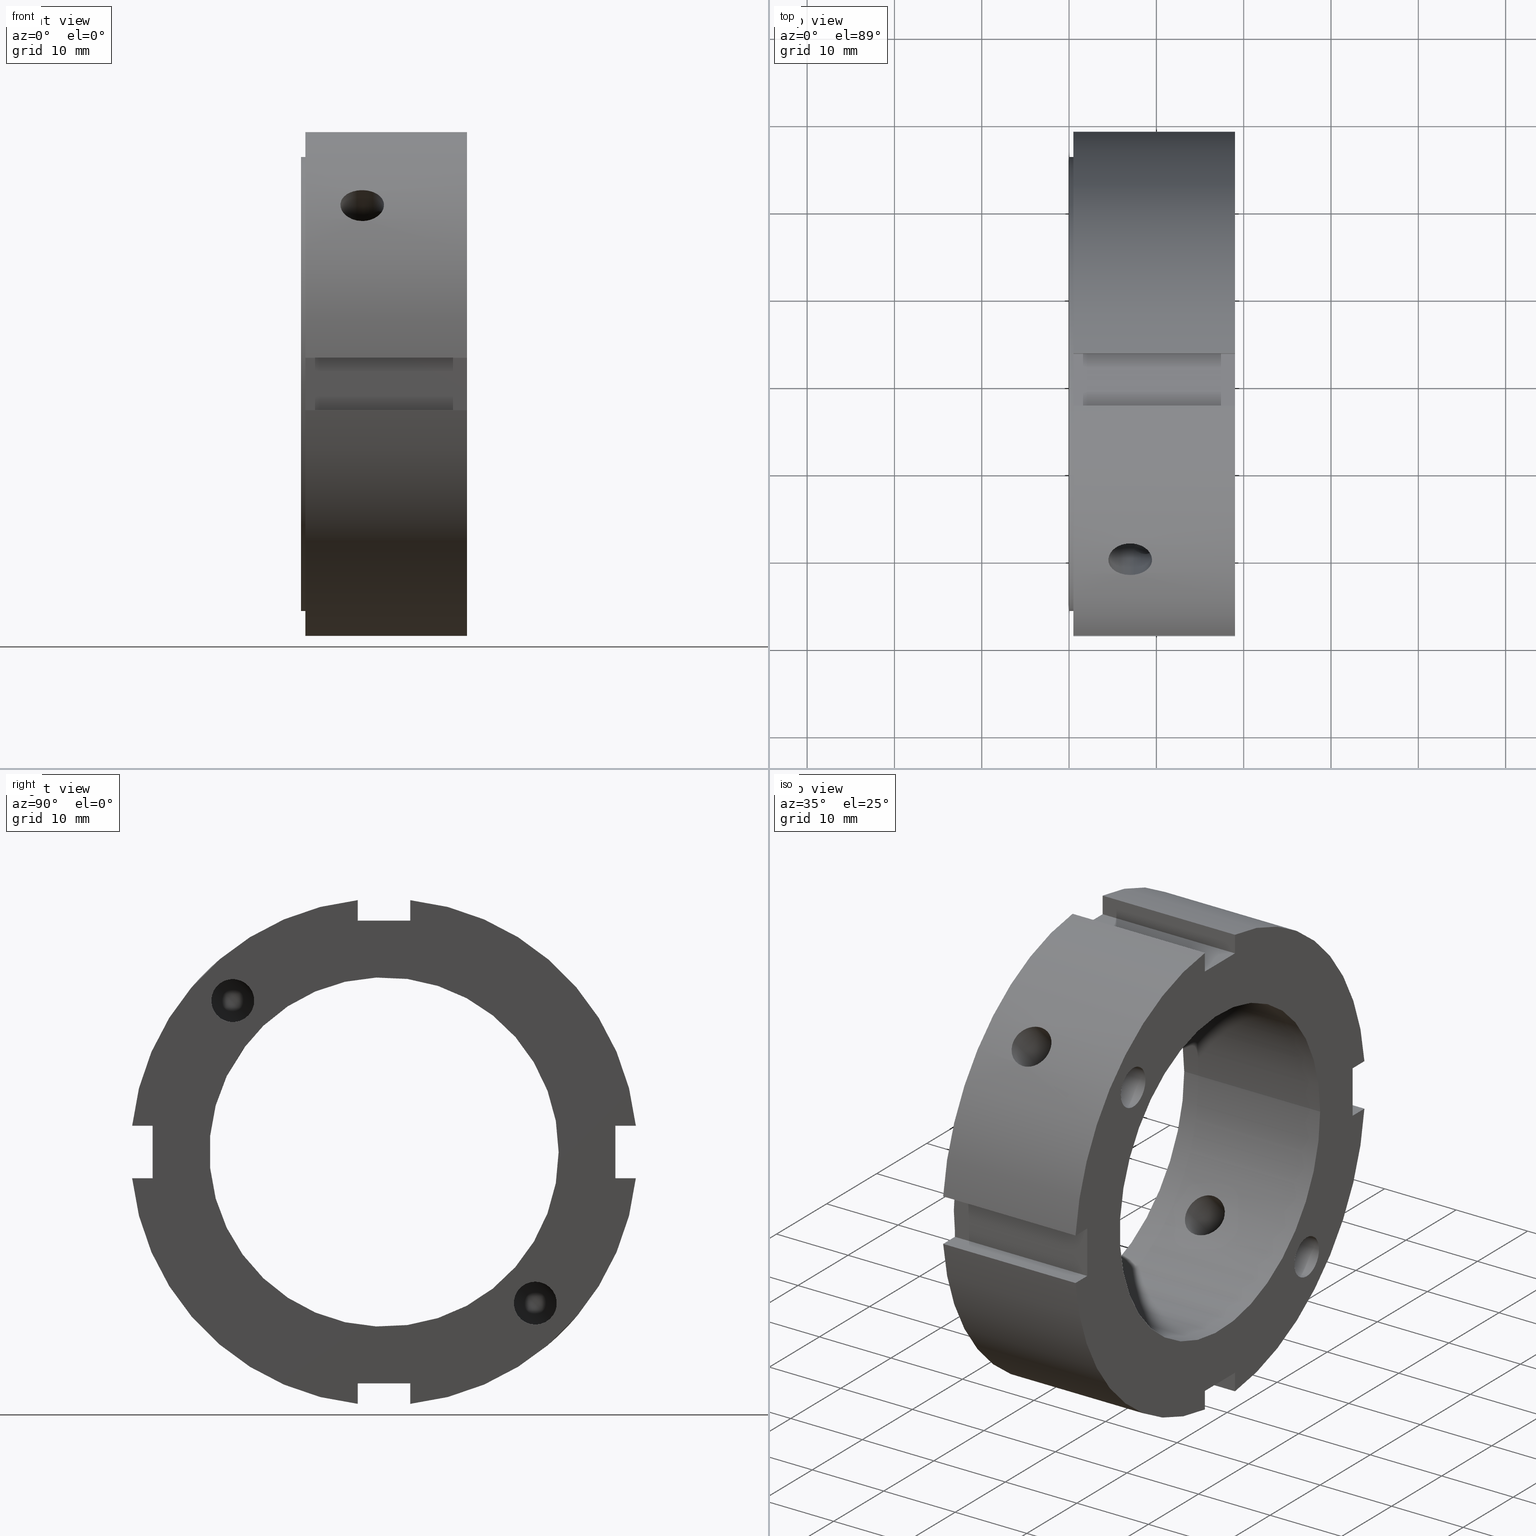
[diagram: canonical four-view strip — front | top / right | iso, engineering-drawing reading convention]
A machine part, canonical four-view strip (front | top / right | iso — engineering-drawing reading convention). The complete STEP part file that produces these views, byte-faithful:
ISO-10303-21;
HEADER;
/****************************************************************
 * Generated by software with PDElib inside                    *
 * PDElib Version v51a, created Wed 11/30/2011                  *
 * ITI Transcendata (http://www.transcendata.com/)              *
 ****************************************************************/
FILE_DESCRIPTION((''),'2;1');
FILE_NAME('C:\\Users\\sugidesign\\Documents\\Fukuda\\3Ddata\\ZMVtype\\FKD ZMV40.stp','2014-02-22T15:47:23',('sugidesign'),(''),'Autodesk Inventor LT ','Autodesk Inventor LT ','');
FILE_SCHEMA(('CONFIG_CONTROL_DESIGN'));
ENDSEC;
DATA;
#5=APPLICATION_CONTEXT('configuration controlled 3D designs of mechanical parts and assemblies');
#6=APPLICATION_PROTOCOL_DEFINITION('International Standard','ap203_configuration_controlled_3d_design_of_mechanical_parts_and_assemblies_mim_lf',2004,#5);
#7=PRODUCT_CONTEXT('',#5,'mechanical');
#8=PRODUCT('FKD ZMV40','FKD ZMV40',$,(#7));
#9=PRODUCT_RELATED_PRODUCT_CATEGORY('part',$,(#8));
#10=PRODUCT_DEFINITION_FORMATION('',$,#8);
#11=PRODUCT_DEFINITION_CONTEXT('part definition',#5,'design');
#12=PRODUCT_DEFINITION('',$,#10,#11);
#18=(NAMED_UNIT(*)PLANE_ANGLE_UNIT()SI_UNIT($,.RADIAN.));
#19=DIMENSIONAL_EXPONENTS(0.0,0.0,0.0,0.0,0.0,0.0,0.0);
#20=PLANE_ANGLE_MEASURE_WITH_UNIT(PLANE_ANGLE_MEASURE(0.0174532925),#18);
#24=(CONVERSION_BASED_UNIT('DEGREE',#20)NAMED_UNIT(#19)PLANE_ANGLE_UNIT());
#28=(NAMED_UNIT(*)SI_UNIT($,.STERADIAN.)SOLID_ANGLE_UNIT());
#32=(LENGTH_UNIT()NAMED_UNIT(*)SI_UNIT(.MILLI.,.METRE.));
#34=UNCERTAINTY_MEASURE_WITH_UNIT(LENGTH_MEASURE(0.01),#32,'DISTANCE_ACCURACY_VALUE','');
#36=(GEOMETRIC_REPRESENTATION_CONTEXT(3)GLOBAL_UNCERTAINTY_ASSIGNED_CONTEXT((#34))GLOBAL_UNIT_ASSIGNED_CONTEXT((#24,#28,#32))REPRESENTATION_CONTEXT('None','None'));
#37=AXIS2_PLACEMENT_3D('',#38,#39,#40);
#38=CARTESIAN_POINT('',(0.0,0.0,0.0));
#39=DIRECTION('',(0.0,0.0,1.0));
#40=DIRECTION('',(1.0,0.0,0.0));
#41=SHAPE_REPRESENTATION('',(#37),#36);
#42=PRODUCT_DEFINITION_SHAPE('','',#12);
#43=SHAPE_DEFINITION_REPRESENTATION(#42,#41);
#49=(NAMED_UNIT(*)PLANE_ANGLE_UNIT()SI_UNIT($,.RADIAN.));
#50=DIMENSIONAL_EXPONENTS(0.0,0.0,0.0,0.0,0.0,0.0,0.0);
#51=PLANE_ANGLE_MEASURE_WITH_UNIT(PLANE_ANGLE_MEASURE(0.0174532925),#49);
#55=(CONVERSION_BASED_UNIT('DEGREE',#51)NAMED_UNIT(#50)PLANE_ANGLE_UNIT());
#59=(NAMED_UNIT(*)SI_UNIT($,.STERADIAN.)SOLID_ANGLE_UNIT());
#63=(LENGTH_UNIT()NAMED_UNIT(*)SI_UNIT(.MILLI.,.METRE.));
#65=UNCERTAINTY_MEASURE_WITH_UNIT(LENGTH_MEASURE(0.000001),#63,'DISTANCE_ACCURACY_VALUE','');
#67=(GEOMETRIC_REPRESENTATION_CONTEXT(3)GLOBAL_UNCERTAINTY_ASSIGNED_CONTEXT((#65))GLOBAL_UNIT_ASSIGNED_CONTEXT((#55,#59,#63))REPRESENTATION_CONTEXT('','3D'));
#68=CARTESIAN_POINT('',(12.999999999999993,-17.324116139070405,17.324116139070426));
#69=DIRECTION('',(-1.0,0.0,0.0));
#70=DIRECTION('',(0.0,-1.0,0.0));
#71=AXIS2_PLACEMENT_3D('',#68,#69,#70);
#72=CYLINDRICAL_SURFACE('',#71,2.4585);
#73=CARTESIAN_POINT('',(18.999999999999993,-19.782616139070406,17.324116139070426));
#74=VERTEX_POINT('',#73);
#75=CARTESIAN_POINT('',(18.999999999999993,-17.324116139070405,17.324116139070426));
#76=DIRECTION('',(-1.0,0.0,0.0));
#77=DIRECTION('',(0.0,-1.0,0.0));
#78=AXIS2_PLACEMENT_3D('',#75,#76,#77);
#79=CIRCLE('',#78,2.4585);
#80=EDGE_CURVE('',#74,#74,#79,.T.);
#81=ORIENTED_EDGE('',*,*,#80,.F.);
#82=EDGE_LOOP('',(#81));
#83=FACE_OUTER_BOUND('',#82,.T.);
#84=CARTESIAN_POINT('',(7.453627325014675,-15.585694117523282,19.062538160617549));
#85=VERTEX_POINT('',#84);
#86=CARTESIAN_POINT('',(7.453627325014644,-15.585694117523282,19.062538160617553));
#87=CARTESIAN_POINT('',(7.453627325014644,-15.65919449545868,19.136038538552953));
#88=CARTESIAN_POINT('',(7.485845144440728,-15.721749740099904,19.190344293212068));
#89=CARTESIAN_POINT('',(7.564508256890284,-15.844093256853062,19.288784135892108));
#90=CARTESIAN_POINT('',(7.612937817032459,-15.903401967603303,19.331915473377844));
#91=CARTESIAN_POINT('',(7.772228880000018,-16.088421748873991,19.454660206995843));
#92=CARTESIAN_POINT('',(7.89550554551691,-16.218432532021481,19.525458372554812));
#93=CARTESIAN_POINT('',(8.283828024816529,-16.648065161405093,19.708243621454251));
#94=CARTESIAN_POINT('',(8.561851096446016,-16.980966899741215,19.78261613907042));
#95=CARTESIAN_POINT('',(8.987347846502068,-17.602859397720042,19.78261613907042));
#96=CARTESIAN_POINT('',(9.170926118717716,-17.918777307895773,19.732057110939461));
#97=CARTESIAN_POINT('',(9.363473477026187,-18.376624449725831,19.551972429047261));
#98=CARTESIAN_POINT('',(9.414345366287382,-18.526834514403433,19.475000967213369));
#99=CARTESIAN_POINT('',(9.482622830029024,-18.810092283857092,19.290003198885113));
#100=CARTESIAN_POINT('',(9.499999999999991,-18.943128105110823,19.181948216124269));
#101=CARTESIAN_POINT('',(9.499999999999991,-19.181948216124258,18.943128105110834));
#102=CARTESIAN_POINT('',(9.482622830029026,-19.290003198885103,18.810092283857102));
#103=CARTESIAN_POINT('',(9.414345366287385,-19.475000967213351,18.526834514403443));
#104=CARTESIAN_POINT('',(9.36347347702619,-19.551972429047247,18.376624449725846));
#105=CARTESIAN_POINT('',(9.170926118717723,-19.732057110939444,17.918777307895791));
#106=CARTESIAN_POINT('',(8.987347846502082,-19.782616139070392,17.60285939772006));
#107=CARTESIAN_POINT('',(8.561851096446045,-19.782616139070392,16.980966899741237));
#108=CARTESIAN_POINT('',(8.283828024816557,-19.708243621454237,16.648065161405128));
#109=CARTESIAN_POINT('',(7.895505545516956,-19.525458372554802,16.21843253202152));
#110=CARTESIAN_POINT('',(7.772228880000084,-19.454660206995836,16.088421748874026));
#111=CARTESIAN_POINT('',(7.612937817032536,-19.331915473377833,15.90340196760333));
#112=CARTESIAN_POINT('',(7.564508256890386,-19.28878413589209,15.844093256853075));
#113=CARTESIAN_POINT('',(7.485845144440839,-19.190344293212043,15.721749740099913));
#114=CARTESIAN_POINT('',(7.453627325014773,-19.136038538552921,15.659194495458696));
#115=CARTESIAN_POINT('',(7.45362732501478,-18.989037782682129,15.512193739587904));
#116=CARTESIAN_POINT('',(7.485845144440816,-18.926482538040904,15.457887984928774));
#117=CARTESIAN_POINT('',(7.56450825689037,-18.804139021287746,15.359448142248732));
#118=CARTESIAN_POINT('',(7.612937817032542,-18.744830310537498,15.316316804762995));
#119=CARTESIAN_POINT('',(7.772228880000092,-18.559810529266802,15.193572071144994));
#120=CARTESIAN_POINT('',(7.895505545516972,-18.429799746119294,15.122773905586024));
#121=CARTESIAN_POINT('',(8.283828024816573,-18.000167116735692,14.939988656686594));
#122=CARTESIAN_POINT('',(8.561851096446043,-17.667265378399581,14.865616139070411));
#123=CARTESIAN_POINT('',(8.987347846502077,-17.045372880420764,14.865616139070411));
#124=CARTESIAN_POINT('',(9.170926118717727,-16.72945497024504,14.916175167201386));
#125=CARTESIAN_POINT('',(9.363473477026194,-16.271607828414982,15.096259849093585));
#126=CARTESIAN_POINT('',(9.414345366287385,-16.121397763737384,15.173231310927484));
#127=CARTESIAN_POINT('',(9.482622830029024,-15.838139994283724,15.358229079255734));
#128=CARTESIAN_POINT('',(9.499999999999991,-15.705104173029998,15.466284062016582));
#129=CARTESIAN_POINT('',(9.499999999999991,-15.466284062016564,15.705104173030017));
#130=CARTESIAN_POINT('',(9.482622830029023,-15.358229079255711,15.838139994283747));
#131=CARTESIAN_POINT('',(9.414345366287376,-15.173231310927459,16.121397763737409));
#132=CARTESIAN_POINT('',(9.363473477026183,-15.096259849093567,16.271607828415007));
#133=CARTESIAN_POINT('',(9.170926118717709,-14.916175167201368,16.729454970245065));
#134=CARTESIAN_POINT('',(8.987347846502063,-14.865616139070411,17.045372880420796));
#135=CARTESIAN_POINT('',(8.561851096446011,-14.865616139070415,17.66726537839962));
#136=CARTESIAN_POINT('',(8.283828024816526,-14.939988656686587,18.000167116735746));
#137=CARTESIAN_POINT('',(7.895505545516905,-15.122773905586024,18.429799746119354));
#138=CARTESIAN_POINT('',(7.772228880000012,-15.193572071144992,18.559810529266844));
#139=CARTESIAN_POINT('',(7.612937817032455,-15.316316804762987,18.74483031053753));
#140=CARTESIAN_POINT('',(7.564508256890302,-15.359448142248729,18.804139021287778));
#141=CARTESIAN_POINT('',(7.485845144440745,-15.457887984928769,18.926482538040933));
#142=CARTESIAN_POINT('',(7.453627325014635,-15.512193739587881,18.989037782682153));
#143=CARTESIAN_POINT('',(7.453627325014635,-15.585694117523278,19.062538160617553));
#144=B_SPLINE_CURVE_WITH_KNOTS('',3,(#86,#87,#88,#89,#90,#91,#92,#93,#94,#95,#96,#97,#98,#99,#100,#101,#102,#103,#104,#105,#106,#107,#108,#109,#110,#111,#112,#113,#114,#115,#116,#117,#118,#119,#120,#121,#122,#123,#124,#125,#126,#127,#128,#129,#130,#131,#132,#133,#134,#135,#136,#137,#138,#139,#140,#141,#142,#143),.UNSPECIFIED.,.T.,.U.,(4,2,2,2,2,2,2,2,2,2,2,2,2,2,2,2,2,2,2,2,2,2,2,2,2,2,2,2,4),(0.0,0.031183569394737,0.062367138789473,0.124734277578947,0.249468555157893,0.350791347146689,0.401452743141086,0.452114139135484,0.502775535129881,0.553436931124278,0.654759723113072,0.779494000692016,0.841861139481488,0.873044708876224,0.90422827827096,0.935411847665695,0.96659541706043,1.028962555849901,1.153696833428842,1.255019625417636,1.305681021412033,1.356342417406431,1.407003813400828,1.457665209395226,1.558988001384021,1.683722278962967,1.74608941775244,1.777272987147177,1.808456556541913),.UNSPECIFIED.);
#145=EDGE_CURVE('',#85,#85,#144,.T.);
#146=ORIENTED_EDGE('',*,*,#145,.F.);
#147=EDGE_LOOP('',(#146));
#148=FACE_BOUND('',#147,.T.);
#149=ADVANCED_FACE('',(#83,#148),#72,.F.);
#150=CARTESIAN_POINT('',(6.999999999999991,-59.232592379533749,59.232592379533756));
#151=DIRECTION('',(0.0,-0.707106781186547,0.707106781186548));
#152=DIRECTION('',(1.0,0.0,0.0));
#153=AXIS2_PLACEMENT_3D('',#150,#151,#152);
#154=CYLINDRICAL_SURFACE('',#153,2.5);
#155=CARTESIAN_POINT('',(6.999999999999991,-22.197524660780719,18.661990754847992));
#156=VERTEX_POINT('',#155);
#157=CARTESIAN_POINT('',(6.999999999999991,-22.197524660780722,18.661990754847988));
#158=CARTESIAN_POINT('',(6.685926821433307,-22.197524660780722,18.661990754847988));
#159=CARTESIAN_POINT('',(6.351026040286827,-22.15711292575266,18.710390970576551));
#160=CARTESIAN_POINT('',(5.735124046939606,-21.991088060538893,18.905248724555669));
#161=CARTESIAN_POINT('',(5.454109536044088,-21.865271681287403,19.051490941357077));
#162=CARTESIAN_POINT('',(5.010356974116497,-21.570654137208784,19.384434288694266));
#163=CARTESIAN_POINT('',(4.817982172770842,-21.382143077268246,19.593338020832572));
#164=CARTESIAN_POINT('',(4.562799379874514,-20.961012666023965,20.043225423786364));
#165=CARTESIAN_POINT('',(4.499999999999991,-20.728179512282058,20.284013796537703));
#166=CARTESIAN_POINT('',(4.499999999999991,-20.2840137965377,20.728179512282061));
#167=CARTESIAN_POINT('',(4.562799379874514,-20.04322542378636,20.961012666023962));
#168=CARTESIAN_POINT('',(4.817982172770844,-19.593338020832569,21.382143077268239));
#169=CARTESIAN_POINT('',(5.010356974116497,-19.384434288694262,21.570654137208788));
#170=CARTESIAN_POINT('',(5.454109536044088,-19.051490941357073,21.865271681287403));
#171=CARTESIAN_POINT('',(5.735124046939606,-18.905248724555666,21.991088060538893));
#172=CARTESIAN_POINT('',(6.351026040286826,-18.710390970576547,22.15711292575266));
#173=CARTESIAN_POINT('',(6.685926821433307,-18.661990754847988,22.197524660780722));
#174=CARTESIAN_POINT('',(7.314073178566673,-18.661990754847988,22.197524660780719));
#175=CARTESIAN_POINT('',(7.648973959713153,-18.710390970576544,22.157112925752671));
#176=CARTESIAN_POINT('',(8.264875953060374,-18.905248724555662,21.9910880605389));
#177=CARTESIAN_POINT('',(8.545890463955892,-19.05149094135707,21.865271681287403));
#178=CARTESIAN_POINT('',(8.989643025883485,-19.384434288694262,21.570654137208788));
#179=CARTESIAN_POINT('',(9.182017827229139,-19.593338020832569,21.382143077268239));
#180=CARTESIAN_POINT('',(9.437200620125466,-20.043225423786364,20.961012666023962));
#181=CARTESIAN_POINT('',(9.499999999999991,-20.2840137965377,20.728179512282061));
#182=CARTESIAN_POINT('',(9.499999999999991,-20.728179512282058,20.284013796537703));
#183=CARTESIAN_POINT('',(9.43720062012547,-20.961012666023958,20.043225423786364));
#184=CARTESIAN_POINT('',(9.182017827229142,-21.382143077268235,19.593338020832572));
#185=CARTESIAN_POINT('',(8.989643025883487,-21.570654137208784,19.384434288694266));
#186=CARTESIAN_POINT('',(8.545890463955894,-21.865271681287403,19.051490941357077));
#187=CARTESIAN_POINT('',(8.264875953060377,-21.991088060538893,18.905248724555669));
#188=CARTESIAN_POINT('',(7.648973959713156,-22.15711292575266,18.710390970576551));
#189=CARTESIAN_POINT('',(7.314073178566673,-22.197524660780722,18.661990754847988));
#190=CARTESIAN_POINT('',(6.999999999999991,-22.197524660780722,18.661990754847988));
#191=B_SPLINE_CURVE_WITH_KNOTS('',3,(#157,#158,#159,#160,#161,#162,#163,#164,#165,#166,#167,#168,#169,#170,#171,#172,#173,#174,#175,#176,#177,#178,#179,#180,#181,#182,#183,#184,#185,#186,#187,#188,#189,#190),.UNSPECIFIED.,.T.,.U.,(4,2,2,2,2,2,2,2,2,2,2,2,2,2,2,2,4),(0.0,0.094221953570005,0.18844390714001,0.282665684012033,0.376887460884057,0.47110923775608,0.565331014628104,0.659552968198109,0.753774921768113,0.847996875338118,0.942218828908123,1.036440605780147,1.13066238265217,1.224884159524194,1.319105936396217,1.413327889966222,1.507549843536227),.UNSPECIFIED.);
#192=EDGE_CURVE('',#156,#156,#191,.T.);
#193=ORIENTED_EDGE('',*,*,#192,.F.);
#194=EDGE_LOOP('',(#193));
#195=FACE_OUTER_BOUND('',#194,.T.);
#196=ORIENTED_EDGE('',*,*,#145,.T.);
#197=EDGE_LOOP('',(#196));
#198=FACE_BOUND('',#197,.T.);
#199=CARTESIAN_POINT('',(6.999999999999991,-15.798982153368646,12.263448247435914));
#200=VERTEX_POINT('',#199);
#201=CARTESIAN_POINT('',(6.999999999999991,-15.798982153368648,12.26344824743591));
#202=CARTESIAN_POINT('',(7.314260048212735,-15.798982153368648,12.26344824743591));
#203=CARTESIAN_POINT('',(7.649240061450704,-15.760348281083491,12.313729270633617));
#204=CARTESIAN_POINT('',(8.265089704693066,-15.600850565277671,12.515189491950379));
#205=CARTESIAN_POINT('',(8.545987686324247,-15.479690541518636,12.666047294780203));
#206=CARTESIAN_POINT('',(8.989544366845442,-15.193879826291587,13.007520452827418));
#207=CARTESIAN_POINT('',(9.181891468164904,-15.010052497889516,13.220943998802557));
#208=CARTESIAN_POINT('',(9.437128337929737,-14.595444003476585,13.677282279292415));
#209=CARTESIAN_POINT('',(9.499999999999991,-14.364349178471571,13.91992206899033));
#210=CARTESIAN_POINT('',(9.499999999999991,-13.919922068990328,14.364349178471571));
#211=CARTESIAN_POINT('',(9.437128337929737,-13.677282279292415,14.595444003476587));
#212=CARTESIAN_POINT('',(9.181891468164903,-13.220943998802554,15.010052497889522));
#213=CARTESIAN_POINT('',(8.98954436684544,-13.007520452827414,15.193879826291589));
#214=CARTESIAN_POINT('',(8.545987686324247,-12.666047294780199,15.479690541518636));
#215=CARTESIAN_POINT('',(8.265089704693065,-12.515189491950379,15.600850565277671));
#216=CARTESIAN_POINT('',(7.649240061450703,-12.313729270633617,15.760348281083491));
#217=CARTESIAN_POINT('',(7.314260048212735,-12.263448247435916,15.798982153368648));
#218=CARTESIAN_POINT('',(6.685739951787246,-12.263448247435916,15.798982153368648));
#219=CARTESIAN_POINT('',(6.350759938549278,-12.313729270633617,15.760348281083491));
#220=CARTESIAN_POINT('',(5.734910295306916,-12.515189491950379,15.600850565277671));
#221=CARTESIAN_POINT('',(5.454012313675733,-12.666047294780199,15.479690541518636));
#222=CARTESIAN_POINT('',(5.010455633154542,-13.007520452827418,15.193879826291589));
#223=CARTESIAN_POINT('',(4.818108531835079,-13.220943998802557,15.010052497889518));
#224=CARTESIAN_POINT('',(4.562871662070246,-13.677282279292415,14.595444003476587));
#225=CARTESIAN_POINT('',(4.499999999999991,-13.919922068990328,14.364349178471571));
#226=CARTESIAN_POINT('',(4.499999999999991,-14.364349178471571,13.91992206899033));
#227=CARTESIAN_POINT('',(4.562871662070244,-14.595444003476585,13.67728227929242));
#228=CARTESIAN_POINT('',(4.818108531835078,-15.010052497889518,13.220943998802559));
#229=CARTESIAN_POINT('',(5.010455633154541,-15.193879826291589,13.007520452827418));
#230=CARTESIAN_POINT('',(5.454012313675735,-15.479690541518636,12.666047294780203));
#231=CARTESIAN_POINT('',(5.734910295306919,-15.600850565277671,12.515189491950379));
#232=CARTESIAN_POINT('',(6.350759938549281,-15.760348281083491,12.313729270633617));
#233=CARTESIAN_POINT('',(6.685739951787246,-15.798982153368648,12.263448247435914));
#234=CARTESIAN_POINT('',(6.999999999999991,-15.798982153368648,12.263448247435914));
#235=B_SPLINE_CURVE_WITH_KNOTS('',3,(#201,#202,#203,#204,#205,#206,#207,#208,#209,#210,#211,#212,#213,#214,#215,#216,#217,#218,#219,#220,#221,#222,#223,#224,#225,#226,#227,#228,#229,#230,#231,#232,#233,#234),.UNSPECIFIED.,.T.,.U.,(4,2,2,2,2,2,2,2,2,2,2,2,2,2,2,2,4),(0.0,0.094278014463823,0.188556028927647,0.282833255784844,0.377110482642041,0.471387709499238,0.565664936356435,0.659942950820258,0.754220965284081,0.848498979747905,0.942776994211728,1.037054221068925,1.131331447926122,1.225608674783319,1.319885901640516,1.41416391610434,1.508441930568163),.UNSPECIFIED.);
#236=EDGE_CURVE('',#200,#200,#235,.T.);
#237=ORIENTED_EDGE('',*,*,#236,.F.);
#238=EDGE_LOOP('',(#237));
#239=FACE_BOUND('',#238,.T.);
#240=ADVANCED_FACE('',(#195,#198,#239),#154,.F.);
#241=CARTESIAN_POINT('',(12.999999999999993,17.324116139070419,-17.324116139070412));
#242=DIRECTION('',(1.0,0.0,0.0));
#243=DIRECTION('',(0.0,0.0,-1.0));
#244=AXIS2_PLACEMENT_3D('',#241,#242,#243);
#245=CYLINDRICAL_SURFACE('',#244,2.4585);
#246=CARTESIAN_POINT('',(7.453627325014675,19.062538160617546,-15.585694117523285));
#247=VERTEX_POINT('',#246);
#248=CARTESIAN_POINT('',(7.453627325014675,19.062538160617546,-15.585694117523285));
#249=CARTESIAN_POINT('',(7.453627325014675,18.989037782682146,-15.512193739587888));
#250=CARTESIAN_POINT('',(7.485845144440745,18.926482538040929,-15.457887984928773));
#251=CARTESIAN_POINT('',(7.564508256890302,18.804139021287774,-15.359448142248732));
#252=CARTESIAN_POINT('',(7.612937817032455,18.744830310537527,-15.316316804762993));
#253=CARTESIAN_POINT('',(7.772228880000012,18.559810529266841,-15.193572071144995));
#254=CARTESIAN_POINT('',(7.895505545516905,18.42979974611935,-15.12277390558603));
#255=CARTESIAN_POINT('',(8.283828024816526,18.000167116735742,-14.939988656686591));
#256=CARTESIAN_POINT('',(8.561851096446011,17.667265378399616,-14.865616139070418));
#257=CARTESIAN_POINT('',(8.987347846502063,17.045372880420793,-14.865616139070417));
#258=CARTESIAN_POINT('',(9.170926118717709,16.729454970245062,-14.916175167201374));
#259=CARTESIAN_POINT('',(9.363473477026183,16.271607828415004,-15.096259849093572));
#260=CARTESIAN_POINT('',(9.414345366287376,16.121397763737406,-15.173231310927465));
#261=CARTESIAN_POINT('',(9.482622830029023,15.838139994283742,-15.358229079255716));
#262=CARTESIAN_POINT('',(9.499999999999991,15.705104173030014,-15.466284062016566));
#263=CARTESIAN_POINT('',(9.499999999999991,15.466284062016577,-15.705104173030001));
#264=CARTESIAN_POINT('',(9.482622830029024,15.358229079255729,-15.838139994283729));
#265=CARTESIAN_POINT('',(9.414345366287385,15.173231310927481,-16.121397763737388));
#266=CARTESIAN_POINT('',(9.363473477026194,15.096259849093583,-16.271607828414986));
#267=CARTESIAN_POINT('',(9.170926118717729,14.916175167201384,-16.72945497024504));
#268=CARTESIAN_POINT('',(8.987347846502077,14.865616139070417,-17.045372880420764));
#269=CARTESIAN_POINT('',(8.561851096446043,14.865616139070417,-17.667265378399581));
#270=CARTESIAN_POINT('',(8.28382802481657,14.939988656686584,-18.000167116735692));
#271=CARTESIAN_POINT('',(7.89550554551697,15.122773905586017,-18.429799746119304));
#272=CARTESIAN_POINT('',(7.772228880000089,15.19357207114499,-18.559810529266805));
#273=CARTESIAN_POINT('',(7.612937817032539,15.316316804762991,-18.744830310537502));
#274=CARTESIAN_POINT('',(7.56450825689037,15.359448142248729,-18.80413902128775));
#275=CARTESIAN_POINT('',(7.485845144440817,15.457887984928769,-18.926482538040908));
#276=CARTESIAN_POINT('',(7.45362732501478,15.512193739587898,-18.989037782682132));
#277=CARTESIAN_POINT('',(7.453627325014773,15.65919449545869,-19.136038538552924));
#278=CARTESIAN_POINT('',(7.485845144440839,15.721749740099909,-19.190344293212046));
#279=CARTESIAN_POINT('',(7.564508256890386,15.844093256853071,-19.288784135892094));
#280=CARTESIAN_POINT('',(7.612937817032536,15.903401967603326,-19.33191547337784));
#281=CARTESIAN_POINT('',(7.772228880000083,16.088421748874019,-19.45466020699584));
#282=CARTESIAN_POINT('',(7.895505545516956,16.218432532021513,-19.525458372554809));
#283=CARTESIAN_POINT('',(8.283828024816557,16.648065161405125,-19.708243621454244));
#284=CARTESIAN_POINT('',(8.561851096446045,16.980966899741233,-19.782616139070399));
#285=CARTESIAN_POINT('',(8.987347846502082,17.602859397720056,-19.782616139070399));
#286=CARTESIAN_POINT('',(9.170926118717723,17.918777307895791,-19.732057110939447));
#287=CARTESIAN_POINT('',(9.36347347702619,18.376624449725846,-19.551972429047247));
#288=CARTESIAN_POINT('',(9.414345366287385,18.526834514403443,-19.475000967213351));
#289=CARTESIAN_POINT('',(9.482622830029024,18.810092283857102,-19.290003198885103));
#290=CARTESIAN_POINT('',(9.499999999999991,18.94312810511083,-19.181948216124262));
#291=CARTESIAN_POINT('',(9.499999999999991,19.181948216124265,-18.94312810511083));
#292=CARTESIAN_POINT('',(9.482622830029024,19.29000319888511,-18.810092283857095));
#293=CARTESIAN_POINT('',(9.414345366287382,19.475000967213361,-18.526834514403436));
#294=CARTESIAN_POINT('',(9.363473477026187,19.551972429047257,-18.376624449725835));
#295=CARTESIAN_POINT('',(9.170926118717716,19.732057110939458,-17.91877730789578));
#296=CARTESIAN_POINT('',(8.987347846502068,19.782616139070413,-17.602859397720046));
#297=CARTESIAN_POINT('',(8.561851096446016,19.782616139070413,-16.980966899741219));
#298=CARTESIAN_POINT('',(8.283828024816529,19.708243621454248,-16.6480651614051));
#299=CARTESIAN_POINT('',(7.895505545516908,19.525458372554809,-16.218432532021488));
#300=CARTESIAN_POINT('',(7.772228880000016,19.45466020699584,-16.088421748873994));
#301=CARTESIAN_POINT('',(7.612937817032458,19.33191547337784,-15.903401967603308));
#302=CARTESIAN_POINT('',(7.564508256890282,19.288784135892104,-15.844093256853068));
#303=CARTESIAN_POINT('',(7.485845144440726,19.190344293212064,-15.721749740099909));
#304=CARTESIAN_POINT('',(7.453627325014675,19.136038538552945,-15.659194495458683));
#305=CARTESIAN_POINT('',(7.453627325014675,19.062538160617546,-15.585694117523285));
#306=B_SPLINE_CURVE_WITH_KNOTS('',3,(#248,#249,#250,#251,#252,#253,#254,#255,#256,#257,#258,#259,#260,#261,#262,#263,#264,#265,#266,#267,#268,#269,#270,#271,#272,#273,#274,#275,#276,#277,#278,#279,#280,#281,#282,#283,#284,#285,#286,#287,#288,#289,#290,#291,#292,#293,#294,#295,#296,#297,#298,#299,#300,#301,#302,#303,#304,#305),.UNSPECIFIED.,.T.,.U.,(4,2,2,2,2,2,2,2,2,2,2,2,2,2,2,2,2,2,2,2,2,2,2,2,2,2,2,2,4),(0.0,0.031183569394737,0.062367138789473,0.124734277578946,0.249468555157892,0.350791347146687,0.401452743141085,0.452114139135483,0.50277553512988,0.553436931124277,0.654759723113071,0.779494000692012,0.841861139481482,0.873044708876218,0.904228278270953,0.935411847665689,0.966595417060425,1.028962555849897,1.153696833428841,1.255019625417635,1.305681021412032,1.356342417406429,1.407003813400826,1.457665209395224,1.558988001384019,1.683722278962966,1.746089417752439,1.777272987147176,1.808456556541913),.UNSPECIFIED.);
#307=EDGE_CURVE('',#247,#247,#306,.T.);
#308=ORIENTED_EDGE('',*,*,#307,.F.);
#309=EDGE_LOOP('',(#308));
#310=FACE_OUTER_BOUND('',#309,.T.);
#311=CARTESIAN_POINT('',(18.999999999999993,17.324116139070419,-19.782616139070409));
#312=VERTEX_POINT('',#311);
#313=CARTESIAN_POINT('',(18.999999999999993,17.324116139070419,-17.324116139070412));
#314=DIRECTION('',(-1.0,0.0,0.0));
#315=DIRECTION('',(0.0,0.0,-1.0));
#316=AXIS2_PLACEMENT_3D('',#313,#314,#315);
#317=CIRCLE('',#316,2.4585);
#318=EDGE_CURVE('',#312,#312,#317,.T.);
#319=ORIENTED_EDGE('',*,*,#318,.F.);
#320=EDGE_LOOP('',(#319));
#321=FACE_BOUND('',#320,.T.);
#322=ADVANCED_FACE('',(#310,#321),#245,.F.);
#323=CARTESIAN_POINT('',(6.999999999999991,59.232592379533749,-59.232592379533756));
#324=DIRECTION('',(0.0,-0.707106781186547,0.707106781186548));
#325=DIRECTION('',(1.0,0.0,0.0));
#326=AXIS2_PLACEMENT_3D('',#323,#324,#325);
#327=CYLINDRICAL_SURFACE('',#326,2.5);
#328=CARTESIAN_POINT('',(6.999999999999991,18.661990754847984,-22.197524660780722));
#329=VERTEX_POINT('',#328);
#330=CARTESIAN_POINT('',(6.999999999999992,18.661990754847984,-22.197524660780729));
#331=CARTESIAN_POINT('',(7.314073178566675,18.661990754847984,-22.197524660780729));
#332=CARTESIAN_POINT('',(7.648973959713155,18.710390970576544,-22.157112925752671));
#333=CARTESIAN_POINT('',(8.264875953060376,18.905248724555662,-21.9910880605389));
#334=CARTESIAN_POINT('',(8.545890463955892,19.051490941357073,-21.865271681287403));
#335=CARTESIAN_POINT('',(8.989643025883485,19.384434288694262,-21.570654137208788));
#336=CARTESIAN_POINT('',(9.182017827229137,19.593338020832569,-21.38214307726825));
#337=CARTESIAN_POINT('',(9.437200620125466,20.04322542378636,-20.961012666023969));
#338=CARTESIAN_POINT('',(9.499999999999991,20.2840137965377,-20.728179512282061));
#339=CARTESIAN_POINT('',(9.499999999999991,20.728179512282058,-20.284013796537703));
#340=CARTESIAN_POINT('',(9.43720062012547,20.961012666023962,-20.043225423786364));
#341=CARTESIAN_POINT('',(9.18201782722914,21.382143077268239,-19.593338020832572));
#342=CARTESIAN_POINT('',(8.989643025883485,21.570654137208784,-19.384434288694266));
#343=CARTESIAN_POINT('',(8.545890463955892,21.865271681287396,-19.051490941357073));
#344=CARTESIAN_POINT('',(8.264875953060376,21.991088060538893,-18.905248724555669));
#345=CARTESIAN_POINT('',(7.648973959713155,22.15711292575266,-18.710390970576551));
#346=CARTESIAN_POINT('',(7.314073178566673,22.197524660780719,-18.661990754847992));
#347=CARTESIAN_POINT('',(6.685926821433307,22.197524660780719,-18.661990754847992));
#348=CARTESIAN_POINT('',(6.351026040286827,22.15711292575266,-18.710390970576551));
#349=CARTESIAN_POINT('',(5.735124046939606,21.991088060538893,-18.905248724555669));
#350=CARTESIAN_POINT('',(5.454109536044088,21.865271681287403,-19.051490941357077));
#351=CARTESIAN_POINT('',(5.010356974116497,21.570654137208784,-19.384434288694266));
#352=CARTESIAN_POINT('',(4.817982172770842,21.382143077268235,-19.593338020832572));
#353=CARTESIAN_POINT('',(4.562799379874513,20.961012666023958,-20.043225423786364));
#354=CARTESIAN_POINT('',(4.499999999999991,20.728179512282058,-20.284013796537703));
#355=CARTESIAN_POINT('',(4.499999999999991,20.2840137965377,-20.728179512282061));
#356=CARTESIAN_POINT('',(4.562799379874514,20.04322542378636,-20.961012666023962));
#357=CARTESIAN_POINT('',(4.817982172770844,19.593338020832569,-21.382143077268239));
#358=CARTESIAN_POINT('',(5.010356974116497,19.384434288694262,-21.570654137208788));
#359=CARTESIAN_POINT('',(5.454109536044088,19.051490941357073,-21.865271681287403));
#360=CARTESIAN_POINT('',(5.735124046939606,18.905248724555662,-21.9910880605389));
#361=CARTESIAN_POINT('',(6.351026040286827,18.710390970576544,-22.157112925752671));
#362=CARTESIAN_POINT('',(6.685926821433307,18.661990754847984,-22.197524660780729));
#363=CARTESIAN_POINT('',(6.999999999999989,18.661990754847984,-22.197524660780729));
#364=B_SPLINE_CURVE_WITH_KNOTS('',3,(#330,#331,#332,#333,#334,#335,#336,#337,#338,#339,#340,#341,#342,#343,#344,#345,#346,#347,#348,#349,#350,#351,#352,#353,#354,#355,#356,#357,#358,#359,#360,#361,#362,#363),.UNSPECIFIED.,.T.,.U.,(4,2,2,2,2,2,2,2,2,2,2,2,2,2,2,2,4),(0.0,0.094221953570005,0.18844390714001,0.282665684012033,0.376887460884057,0.47110923775608,0.565331014628104,0.659552968198109,0.753774921768114,0.847996875338118,0.942218828908123,1.036440605780147,1.13066238265217,1.224884159524194,1.319105936396217,1.413327889966222,1.507549843536227),.UNSPECIFIED.);
#365=EDGE_CURVE('',#329,#329,#364,.T.);
#366=ORIENTED_EDGE('',*,*,#365,.F.);
#367=EDGE_LOOP('',(#366));
#368=FACE_OUTER_BOUND('',#367,.T.);
#369=ORIENTED_EDGE('',*,*,#307,.T.);
#370=EDGE_LOOP('',(#369));
#371=FACE_BOUND('',#370,.T.);
#372=CARTESIAN_POINT('',(6.999999999999991,12.263448247435909,-15.798982153368648));
#373=VERTEX_POINT('',#372);
#374=CARTESIAN_POINT('',(6.999999999999991,12.263448247435909,-15.79898215336865));
#375=CARTESIAN_POINT('',(6.685739951787246,12.263448247435909,-15.79898215336865));
#376=CARTESIAN_POINT('',(6.350759938549278,12.313729270633617,-15.760348281083491));
#377=CARTESIAN_POINT('',(5.734910295306916,12.515189491950379,-15.600850565277671));
#378=CARTESIAN_POINT('',(5.454012313675733,12.666047294780199,-15.479690541518636));
#379=CARTESIAN_POINT('',(5.010455633154542,13.007520452827418,-15.193879826291589));
#380=CARTESIAN_POINT('',(4.818108531835079,13.220943998802557,-15.010052497889522));
#381=CARTESIAN_POINT('',(4.562871662070243,13.677282279292415,-14.59544400347659));
#382=CARTESIAN_POINT('',(4.499999999999991,13.919922068990328,-14.364349178471574));
#383=CARTESIAN_POINT('',(4.499999999999991,14.364349178471571,-13.91992206899033));
#384=CARTESIAN_POINT('',(4.562871662070243,14.595444003476585,-13.677282279292415));
#385=CARTESIAN_POINT('',(4.818108531835076,15.010052497889516,-13.220943998802557));
#386=CARTESIAN_POINT('',(5.010455633154541,15.193879826291587,-13.007520452827418));
#387=CARTESIAN_POINT('',(5.454012313675733,15.479690541518634,-12.666047294780203));
#388=CARTESIAN_POINT('',(5.734910295306914,15.600850565277671,-12.51518949195038));
#389=CARTESIAN_POINT('',(6.350759938549276,15.760348281083495,-12.313729270633619));
#390=CARTESIAN_POINT('',(6.685739951787246,15.798982153368645,-12.263448247435917));
#391=CARTESIAN_POINT('',(7.314260048212735,15.798982153368646,-12.263448247435917));
#392=CARTESIAN_POINT('',(7.649240061450705,15.760348281083491,-12.313729270633619));
#393=CARTESIAN_POINT('',(8.265089704693066,15.600850565277671,-12.51518949195038));
#394=CARTESIAN_POINT('',(8.545987686324247,15.479690541518636,-12.666047294780203));
#395=CARTESIAN_POINT('',(8.989544366845442,15.193879826291585,-13.007520452827418));
#396=CARTESIAN_POINT('',(9.181891468164903,15.010052497889518,-13.220943998802559));
#397=CARTESIAN_POINT('',(9.437128337929737,14.595444003476587,-13.677282279292417));
#398=CARTESIAN_POINT('',(9.499999999999991,14.364349178471571,-13.919922068990328));
#399=CARTESIAN_POINT('',(9.499999999999991,13.919922068990328,-14.364349178471571));
#400=CARTESIAN_POINT('',(9.437128337929737,13.677282279292415,-14.595444003476585));
#401=CARTESIAN_POINT('',(9.181891468164903,13.220943998802557,-15.010052497889516));
#402=CARTESIAN_POINT('',(8.989544366845442,13.007520452827418,-15.193879826291589));
#403=CARTESIAN_POINT('',(8.545987686324249,12.666047294780201,-15.479690541518636));
#404=CARTESIAN_POINT('',(8.265089704693068,12.51518949195038,-15.600850565277671));
#405=CARTESIAN_POINT('',(7.649240061450707,12.313729270633619,-15.760348281083495));
#406=CARTESIAN_POINT('',(7.314260048212735,12.26344824743591,-15.798982153368648));
#407=CARTESIAN_POINT('',(6.999999999999991,12.26344824743591,-15.798982153368648));
#408=B_SPLINE_CURVE_WITH_KNOTS('',3,(#374,#375,#376,#377,#378,#379,#380,#381,#382,#383,#384,#385,#386,#387,#388,#389,#390,#391,#392,#393,#394,#395,#396,#397,#398,#399,#400,#401,#402,#403,#404,#405,#406,#407),.UNSPECIFIED.,.T.,.U.,(4,2,2,2,2,2,2,2,2,2,2,2,2,2,2,2,4),(0.0,0.094278014463823,0.188556028927647,0.282833255784844,0.377110482642041,0.471387709499238,0.565664936356435,0.659942950820258,0.754220965284081,0.848498979747905,0.942776994211728,1.037054221068925,1.131331447926122,1.225608674783319,1.319885901640516,1.41416391610434,1.508441930568163),.UNSPECIFIED.);
#409=EDGE_CURVE('',#373,#373,#408,.T.);
#410=ORIENTED_EDGE('',*,*,#409,.F.);
#411=EDGE_LOOP('',(#410));
#412=FACE_BOUND('',#411,.T.);
#413=ADVANCED_FACE('',(#368,#371,#412),#327,.F.);
#414=CARTESIAN_POINT('',(18.999999999999993,-3.000000000000004,-26.500000000000004));
#415=DIRECTION('',(0.0,-1.0,0.0));
#416=DIRECTION('',(-1.0,0.0,0.0));
#417=AXIS2_PLACEMENT_3D('',#414,#415,#416);
#418=PLANE('',#417);
#419=CARTESIAN_POINT('',(0.499999999999994,-3.000000000000004,-26.500000000000004));
#420=VERTEX_POINT('',#419);
#421=CARTESIAN_POINT('',(0.499999999999994,-3.000000000000004,-28.844410203711917));
#422=VERTEX_POINT('',#421);
#423=CARTESIAN_POINT('',(0.499999999999994,-3.000000000000003,-26.500000000000004));
#424=DIRECTION('',(0.0,0.0,-1.0));
#425=VECTOR('',#424,2.344410203711913);
#426=LINE('',#423,#425);
#427=EDGE_CURVE('',#420,#422,#426,.T.);
#428=ORIENTED_EDGE('',*,*,#427,.F.);
#429=CARTESIAN_POINT('',(18.999999999999993,-3.000000000000004,-26.500000000000004));
#430=VERTEX_POINT('',#429);
#431=CARTESIAN_POINT('',(18.999999999999993,-3.000000000000004,-26.500000000000004));
#432=DIRECTION('',(-1.0,0.0,0.0));
#433=VECTOR('',#432,18.5);
#434=LINE('',#431,#433);
#435=EDGE_CURVE('',#430,#420,#434,.T.);
#436=ORIENTED_EDGE('',*,*,#435,.F.);
#437=CARTESIAN_POINT('',(18.999999999999993,-3.000000000000004,-28.844410203711917));
#438=VERTEX_POINT('',#437);
#439=CARTESIAN_POINT('',(18.999999999999993,-3.000000000000003,-28.844410203711917));
#440=DIRECTION('',(0.0,0.0,1.0));
#441=VECTOR('',#440,2.344410203711913);
#442=LINE('',#439,#441);
#443=EDGE_CURVE('',#438,#430,#442,.T.);
#444=ORIENTED_EDGE('',*,*,#443,.F.);
#445=CARTESIAN_POINT('',(0.499999999999993,-3.000000000000005,-28.844410203711917));
#446=DIRECTION('',(1.0,0.0,0.0));
#447=VECTOR('',#446,18.5);
#448=LINE('',#445,#447);
#449=EDGE_CURVE('',#422,#438,#448,.T.);
#450=ORIENTED_EDGE('',*,*,#449,.F.);
#451=EDGE_LOOP('',(#428,#436,#444,#450));
#452=FACE_OUTER_BOUND('',#451,.T.);
#453=ADVANCED_FACE('',(#452),#418,.F.);
#454=CARTESIAN_POINT('',(18.999999999999993,2.999999999999994,-29.000000000000004));
#455=DIRECTION('',(0.0,1.0,0.0));
#456=DIRECTION('',(1.0,0.0,0.0));
#457=AXIS2_PLACEMENT_3D('',#454,#455,#456);
#458=PLANE('',#457);
#459=CARTESIAN_POINT('',(0.499999999999994,2.999999999999994,-28.844410203711917));
#460=VERTEX_POINT('',#459);
#461=CARTESIAN_POINT('',(0.499999999999994,2.999999999999994,-26.500000000000004));
#462=VERTEX_POINT('',#461);
#463=CARTESIAN_POINT('',(0.499999999999994,2.999999999999993,-28.844410203711917));
#464=DIRECTION('',(0.0,0.0,1.0));
#465=VECTOR('',#464,2.344410203711913);
#466=LINE('',#463,#465);
#467=EDGE_CURVE('',#460,#462,#466,.T.);
#468=ORIENTED_EDGE('',*,*,#467,.F.);
#469=CARTESIAN_POINT('',(18.999999999999993,2.999999999999994,-28.844410203711917));
#470=VERTEX_POINT('',#469);
#471=CARTESIAN_POINT('',(18.999999999999993,2.999999999999994,-28.844410203711917));
#472=DIRECTION('',(-1.0,0.0,0.0));
#473=VECTOR('',#472,18.5);
#474=LINE('',#471,#473);
#475=EDGE_CURVE('',#470,#460,#474,.T.);
#476=ORIENTED_EDGE('',*,*,#475,.F.);
#477=CARTESIAN_POINT('',(18.999999999999993,2.999999999999994,-26.500000000000004));
#478=VERTEX_POINT('',#477);
#479=CARTESIAN_POINT('',(18.999999999999993,2.999999999999994,-26.500000000000004));
#480=DIRECTION('',(0.0,0.0,-1.0));
#481=VECTOR('',#480,2.344410203711913);
#482=LINE('',#479,#481);
#483=EDGE_CURVE('',#478,#470,#482,.T.);
#484=ORIENTED_EDGE('',*,*,#483,.F.);
#485=CARTESIAN_POINT('',(18.999999999999993,2.999999999999994,-26.500000000000004));
#486=DIRECTION('',(-1.0,0.0,0.0));
#487=VECTOR('',#486,18.5);
#488=LINE('',#485,#487);
#489=EDGE_CURVE('',#478,#462,#488,.T.);
#490=ORIENTED_EDGE('',*,*,#489,.T.);
#491=EDGE_LOOP('',(#468,#476,#484,#490));
#492=FACE_OUTER_BOUND('',#491,.T.);
#493=ADVANCED_FACE('',(#492),#458,.F.);
#494=CARTESIAN_POINT('',(18.999999999999993,2.999999999999994,-26.500000000000004));
#495=DIRECTION('',(0.0,0.0,1.0));
#496=DIRECTION('',(0.0,-1.0,0.0));
#497=AXIS2_PLACEMENT_3D('',#494,#495,#496);
#498=PLANE('',#497);
#499=CARTESIAN_POINT('',(0.499999999999994,2.999999999999995,-26.5));
#500=DIRECTION('',(0.0,-1.0,0.0));
#501=VECTOR('',#500,6.0);
#502=LINE('',#499,#501);
#503=EDGE_CURVE('',#462,#420,#502,.T.);
#504=ORIENTED_EDGE('',*,*,#503,.F.);
#505=ORIENTED_EDGE('',*,*,#489,.F.);
#506=CARTESIAN_POINT('',(18.999999999999993,-3.000000000000004,-26.5));
#507=DIRECTION('',(0.0,1.0,0.0));
#508=VECTOR('',#507,5.999999999999998);
#509=LINE('',#506,#508);
#510=EDGE_CURVE('',#430,#478,#509,.T.);
#511=ORIENTED_EDGE('',*,*,#510,.F.);
#512=ORIENTED_EDGE('',*,*,#435,.T.);
#513=EDGE_LOOP('',(#504,#505,#511,#512));
#514=FACE_OUTER_BOUND('',#513,.T.);
#515=ADVANCED_FACE('',(#514),#498,.F.);
#516=CARTESIAN_POINT('',(18.999999999999993,-26.500000000000004,3.000000000000003));
#517=DIRECTION('',(0.0,0.0,1.0));
#518=DIRECTION('',(-1.0,0.0,0.0));
#519=AXIS2_PLACEMENT_3D('',#516,#517,#518);
#520=PLANE('',#519);
#521=CARTESIAN_POINT('',(0.499999999999994,-26.500000000000004,3.000000000000003));
#522=VERTEX_POINT('',#521);
#523=CARTESIAN_POINT('',(0.499999999999994,-28.844410203711917,3.000000000000003));
#524=VERTEX_POINT('',#523);
#525=CARTESIAN_POINT('',(0.499999999999994,-26.5,3.000000000000002));
#526=DIRECTION('',(0.0,-1.0,0.0));
#527=VECTOR('',#526,2.344410203711917);
#528=LINE('',#525,#527);
#529=EDGE_CURVE('',#522,#524,#528,.T.);
#530=ORIENTED_EDGE('',*,*,#529,.F.);
#531=CARTESIAN_POINT('',(18.999999999999993,-26.500000000000004,3.000000000000003));
#532=VERTEX_POINT('',#531);
#533=CARTESIAN_POINT('',(18.999999999999993,-26.500000000000004,3.000000000000003));
#534=DIRECTION('',(-1.0,0.0,0.0));
#535=VECTOR('',#534,18.5);
#536=LINE('',#533,#535);
#537=EDGE_CURVE('',#532,#522,#536,.T.);
#538=ORIENTED_EDGE('',*,*,#537,.F.);
#539=CARTESIAN_POINT('',(18.999999999999993,-28.844410203711917,3.000000000000003));
#540=VERTEX_POINT('',#539);
#541=CARTESIAN_POINT('',(18.999999999999993,-28.844410203711917,3.000000000000003));
#542=DIRECTION('',(0.0,1.0,0.0));
#543=VECTOR('',#542,2.344410203711913);
#544=LINE('',#541,#543);
#545=EDGE_CURVE('',#540,#532,#544,.T.);
#546=ORIENTED_EDGE('',*,*,#545,.F.);
#547=CARTESIAN_POINT('',(0.499999999999993,-28.844410203711917,3.000000000000003));
#548=DIRECTION('',(1.0,0.0,0.0));
#549=VECTOR('',#548,18.5);
#550=LINE('',#547,#549);
#551=EDGE_CURVE('',#524,#540,#550,.T.);
#552=ORIENTED_EDGE('',*,*,#551,.F.);
#553=EDGE_LOOP('',(#530,#538,#546,#552));
#554=FACE_OUTER_BOUND('',#553,.T.);
#555=ADVANCED_FACE('',(#554),#520,.F.);
#556=CARTESIAN_POINT('',(18.999999999999993,-29.000000000000004,-2.999999999999996));
#557=DIRECTION('',(0.0,0.0,-1.0));
#558=DIRECTION('',(1.0,0.0,0.0));
#559=AXIS2_PLACEMENT_3D('',#556,#557,#558);
#560=PLANE('',#559);
#561=CARTESIAN_POINT('',(0.499999999999994,-28.844410203711917,-2.999999999999996));
#562=VERTEX_POINT('',#561);
#563=CARTESIAN_POINT('',(0.499999999999994,-26.500000000000004,-2.999999999999996));
#564=VERTEX_POINT('',#563);
#565=CARTESIAN_POINT('',(0.499999999999994,-28.84441020371192,-2.999999999999996));
#566=DIRECTION('',(0.0,1.0,0.0));
#567=VECTOR('',#566,2.344410203711917);
#568=LINE('',#565,#567);
#569=EDGE_CURVE('',#562,#564,#568,.T.);
#570=ORIENTED_EDGE('',*,*,#569,.F.);
#571=CARTESIAN_POINT('',(18.999999999999993,-28.844410203711917,-2.999999999999996));
#572=VERTEX_POINT('',#571);
#573=CARTESIAN_POINT('',(18.999999999999993,-28.844410203711917,-2.999999999999996));
#574=DIRECTION('',(-1.0,0.0,0.0));
#575=VECTOR('',#574,18.5);
#576=LINE('',#573,#575);
#577=EDGE_CURVE('',#572,#562,#576,.T.);
#578=ORIENTED_EDGE('',*,*,#577,.F.);
#579=CARTESIAN_POINT('',(18.999999999999993,-26.500000000000004,-2.999999999999996));
#580=VERTEX_POINT('',#579);
#581=CARTESIAN_POINT('',(18.999999999999993,-26.500000000000004,-2.999999999999996));
#582=DIRECTION('',(0.0,-1.0,0.0));
#583=VECTOR('',#582,2.344410203711913);
#584=LINE('',#581,#583);
#585=EDGE_CURVE('',#580,#572,#584,.T.);
#586=ORIENTED_EDGE('',*,*,#585,.F.);
#587=CARTESIAN_POINT('',(18.999999999999993,-26.500000000000004,-2.999999999999996));
#588=DIRECTION('',(-1.0,0.0,0.0));
#589=VECTOR('',#588,18.5);
#590=LINE('',#587,#589);
#591=EDGE_CURVE('',#580,#564,#590,.T.);
#592=ORIENTED_EDGE('',*,*,#591,.T.);
#593=EDGE_LOOP('',(#570,#578,#586,#592));
#594=FACE_OUTER_BOUND('',#593,.T.);
#595=ADVANCED_FACE('',(#594),#560,.F.);
#596=CARTESIAN_POINT('',(18.999999999999993,-26.500000000000004,-2.999999999999996));
#597=DIRECTION('',(0.0,1.0,0.0));
#598=DIRECTION('',(0.0,0.0,1.0));
#599=AXIS2_PLACEMENT_3D('',#596,#597,#598);
#600=PLANE('',#599);
#601=CARTESIAN_POINT('',(0.499999999999994,-26.500000000000004,-2.999999999999996));
#602=DIRECTION('',(0.0,0.0,1.0));
#603=VECTOR('',#602,5.999999999999998);
#604=LINE('',#601,#603);
#605=EDGE_CURVE('',#564,#522,#604,.T.);
#606=ORIENTED_EDGE('',*,*,#605,.F.);
#607=ORIENTED_EDGE('',*,*,#591,.F.);
#608=CARTESIAN_POINT('',(18.999999999999993,-26.500000000000004,3.000000000000003));
#609=DIRECTION('',(0.0,0.0,-1.0));
#610=VECTOR('',#609,5.999999999999998);
#611=LINE('',#608,#610);
#612=EDGE_CURVE('',#532,#580,#611,.T.);
#613=ORIENTED_EDGE('',*,*,#612,.F.);
#614=ORIENTED_EDGE('',*,*,#537,.T.);
#615=EDGE_LOOP('',(#606,#607,#613,#614));
#616=FACE_OUTER_BOUND('',#615,.T.);
#617=ADVANCED_FACE('',(#616),#600,.F.);
#618=CARTESIAN_POINT('',(18.999999999999993,3.000000000000001,26.500000000000004));
#619=DIRECTION('',(0.0,1.0,0.0));
#620=DIRECTION('',(-1.0,0.0,0.0));
#621=AXIS2_PLACEMENT_3D('',#618,#619,#620);
#622=PLANE('',#621);
#623=CARTESIAN_POINT('',(0.499999999999994,3.000000000000001,26.500000000000004));
#624=VERTEX_POINT('',#623);
#625=CARTESIAN_POINT('',(0.499999999999994,3.000000000000001,28.844410203711917));
#626=VERTEX_POINT('',#625);
#627=CARTESIAN_POINT('',(0.499999999999994,3.000000000000004,26.500000000000004));
#628=DIRECTION('',(0.0,0.0,1.0));
#629=VECTOR('',#628,2.344410203711913);
#630=LINE('',#627,#629);
#631=EDGE_CURVE('',#624,#626,#630,.T.);
#632=ORIENTED_EDGE('',*,*,#631,.F.);
#633=CARTESIAN_POINT('',(18.999999999999993,3.000000000000001,26.500000000000004));
#634=VERTEX_POINT('',#633);
#635=CARTESIAN_POINT('',(18.999999999999993,3.000000000000001,26.500000000000004));
#636=DIRECTION('',(-1.0,0.0,0.0));
#637=VECTOR('',#636,18.5);
#638=LINE('',#635,#637);
#639=EDGE_CURVE('',#634,#624,#638,.T.);
#640=ORIENTED_EDGE('',*,*,#639,.F.);
#641=CARTESIAN_POINT('',(18.999999999999993,3.000000000000001,28.844410203711917));
#642=VERTEX_POINT('',#641);
#643=CARTESIAN_POINT('',(18.999999999999993,3.000000000000004,28.844410203711917));
#644=DIRECTION('',(0.0,0.0,-1.0));
#645=VECTOR('',#644,2.344410203711913);
#646=LINE('',#643,#645);
#647=EDGE_CURVE('',#642,#634,#646,.T.);
#648=ORIENTED_EDGE('',*,*,#647,.F.);
#649=CARTESIAN_POINT('',(0.499999999999993,3.000000000000002,28.844410203711917));
#650=DIRECTION('',(1.0,0.0,0.0));
#651=VECTOR('',#650,18.5);
#652=LINE('',#649,#651);
#653=EDGE_CURVE('',#626,#642,#652,.T.);
#654=ORIENTED_EDGE('',*,*,#653,.F.);
#655=EDGE_LOOP('',(#632,#640,#648,#654));
#656=FACE_OUTER_BOUND('',#655,.T.);
#657=ADVANCED_FACE('',(#656),#622,.F.);
#658=CARTESIAN_POINT('',(18.999999999999993,-2.999999999999998,29.000000000000004));
#659=DIRECTION('',(0.0,-1.0,0.0));
#660=DIRECTION('',(1.0,0.0,0.0));
#661=AXIS2_PLACEMENT_3D('',#658,#659,#660);
#662=PLANE('',#661);
#663=CARTESIAN_POINT('',(0.499999999999994,-2.999999999999998,28.844410203711917));
#664=VERTEX_POINT('',#663);
#665=CARTESIAN_POINT('',(0.499999999999994,-2.999999999999998,26.500000000000004));
#666=VERTEX_POINT('',#665);
#667=CARTESIAN_POINT('',(0.499999999999994,-2.999999999999997,28.844410203711917));
#668=DIRECTION('',(0.0,0.0,-1.0));
#669=VECTOR('',#668,2.344410203711913);
#670=LINE('',#667,#669);
#671=EDGE_CURVE('',#664,#666,#670,.T.);
#672=ORIENTED_EDGE('',*,*,#671,.F.);
#673=CARTESIAN_POINT('',(18.999999999999993,-2.999999999999998,28.844410203711917));
#674=VERTEX_POINT('',#673);
#675=CARTESIAN_POINT('',(18.999999999999993,-2.999999999999998,28.844410203711917));
#676=DIRECTION('',(-1.0,0.0,0.0));
#677=VECTOR('',#676,18.5);
#678=LINE('',#675,#677);
#679=EDGE_CURVE('',#674,#664,#678,.T.);
#680=ORIENTED_EDGE('',*,*,#679,.F.);
#681=CARTESIAN_POINT('',(18.999999999999993,-2.999999999999998,26.500000000000004));
#682=VERTEX_POINT('',#681);
#683=CARTESIAN_POINT('',(18.999999999999993,-2.999999999999997,26.500000000000004));
#684=DIRECTION('',(0.0,0.0,1.0));
#685=VECTOR('',#684,2.344410203711913);
#686=LINE('',#683,#685);
#687=EDGE_CURVE('',#682,#674,#686,.T.);
#688=ORIENTED_EDGE('',*,*,#687,.F.);
#689=CARTESIAN_POINT('',(18.999999999999993,-2.999999999999998,26.500000000000004));
#690=DIRECTION('',(-1.0,0.0,0.0));
#691=VECTOR('',#690,18.5);
#692=LINE('',#689,#691);
#693=EDGE_CURVE('',#682,#666,#692,.T.);
#694=ORIENTED_EDGE('',*,*,#693,.T.);
#695=EDGE_LOOP('',(#672,#680,#688,#694));
#696=FACE_OUTER_BOUND('',#695,.T.);
#697=ADVANCED_FACE('',(#696),#662,.F.);
#698=CARTESIAN_POINT('',(18.999999999999993,-2.999999999999998,26.500000000000004));
#699=DIRECTION('',(0.0,0.0,-1.0));
#700=DIRECTION('',(0.0,1.0,0.0));
#701=AXIS2_PLACEMENT_3D('',#698,#699,#700);
#702=PLANE('',#701);
#703=CARTESIAN_POINT('',(0.499999999999994,-3.0,26.500000000000004));
#704=DIRECTION('',(0.0,1.0,0.0));
#705=VECTOR('',#704,6.0);
#706=LINE('',#703,#705);
#707=EDGE_CURVE('',#666,#624,#706,.T.);
#708=ORIENTED_EDGE('',*,*,#707,.F.);
#709=ORIENTED_EDGE('',*,*,#693,.F.);
#710=CARTESIAN_POINT('',(18.999999999999993,3.0,26.500000000000004));
#711=DIRECTION('',(0.0,-1.0,0.0));
#712=VECTOR('',#711,5.999999999999998);
#713=LINE('',#710,#712);
#714=EDGE_CURVE('',#634,#682,#713,.T.);
#715=ORIENTED_EDGE('',*,*,#714,.F.);
#716=ORIENTED_EDGE('',*,*,#639,.T.);
#717=EDGE_LOOP('',(#708,#709,#715,#716));
#718=FACE_OUTER_BOUND('',#717,.T.);
#719=ADVANCED_FACE('',(#718),#702,.F.);
#720=CARTESIAN_POINT('',(9.749999999999995,0.0,0.0));
#721=DIRECTION('',(1.0,0.0,0.0));
#722=DIRECTION('',(0.0,1.0,0.0));
#723=AXIS2_PLACEMENT_3D('',#720,#721,#722);
#724=CYLINDRICAL_SURFACE('',#723,29.000000000000004);
#725=ORIENTED_EDGE('',*,*,#653,.T.);
#726=CARTESIAN_POINT('',(18.999999999999993,28.844410203711917,2.999999999999999));
#727=VERTEX_POINT('',#726);
#728=CARTESIAN_POINT('',(18.999999999999993,0.0,0.0));
#729=DIRECTION('',(1.0,0.0,0.0));
#730=DIRECTION('',(0.0,1.0,0.0));
#731=AXIS2_PLACEMENT_3D('',#728,#729,#730);
#732=CIRCLE('',#731,29.000000000000004);
#733=EDGE_CURVE('',#727,#642,#732,.T.);
#734=ORIENTED_EDGE('',*,*,#733,.F.);
#735=CARTESIAN_POINT('',(0.499999999999994,28.844410203711917,2.999999999999999));
#736=VERTEX_POINT('',#735);
#737=CARTESIAN_POINT('',(18.999999999999993,28.844410203711917,2.999999999999999));
#738=DIRECTION('',(-1.0,0.0,0.0));
#739=VECTOR('',#738,18.5);
#740=LINE('',#737,#739);
#741=EDGE_CURVE('',#727,#736,#740,.T.);
#742=ORIENTED_EDGE('',*,*,#741,.T.);
#743=CARTESIAN_POINT('',(0.499999999999994,0.0,0.0));
#744=DIRECTION('',(1.0,0.0,0.0));
#745=DIRECTION('',(0.0,1.0,0.0));
#746=AXIS2_PLACEMENT_3D('',#743,#744,#745);
#747=CIRCLE('',#746,29.0);
#748=EDGE_CURVE('',#736,#626,#747,.T.);
#749=ORIENTED_EDGE('',*,*,#748,.T.);
#750=EDGE_LOOP('',(#725,#734,#742,#749));
#751=FACE_OUTER_BOUND('',#750,.T.);
#752=ADVANCED_FACE('',(#751),#724,.T.);
#753=CARTESIAN_POINT('',(9.749999999999995,0.0,0.0));
#754=DIRECTION('',(1.0,0.0,0.0));
#755=DIRECTION('',(0.0,1.0,0.0));
#756=AXIS2_PLACEMENT_3D('',#753,#754,#755);
#757=CYLINDRICAL_SURFACE('',#756,29.000000000000004);
#758=ORIENTED_EDGE('',*,*,#551,.T.);
#759=CARTESIAN_POINT('',(18.999999999999993,0.0,0.0));
#760=DIRECTION('',(1.0,0.0,0.0));
#761=DIRECTION('',(0.0,1.0,0.0));
#762=AXIS2_PLACEMENT_3D('',#759,#760,#761);
#763=CIRCLE('',#762,29.000000000000004);
#764=EDGE_CURVE('',#674,#540,#763,.T.);
#765=ORIENTED_EDGE('',*,*,#764,.F.);
#766=ORIENTED_EDGE('',*,*,#679,.T.);
#767=CARTESIAN_POINT('',(0.499999999999994,0.0,0.0));
#768=DIRECTION('',(1.0,0.0,0.0));
#769=DIRECTION('',(0.0,1.0,0.0));
#770=AXIS2_PLACEMENT_3D('',#767,#768,#769);
#771=CIRCLE('',#770,29.0);
#772=EDGE_CURVE('',#664,#524,#771,.T.);
#773=ORIENTED_EDGE('',*,*,#772,.T.);
#774=EDGE_LOOP('',(#758,#765,#766,#773));
#775=FACE_OUTER_BOUND('',#774,.T.);
#776=ORIENTED_EDGE('',*,*,#192,.T.);
#777=EDGE_LOOP('',(#776));
#778=FACE_BOUND('',#777,.T.);
#779=ADVANCED_FACE('',(#775,#778),#757,.T.);
#780=CARTESIAN_POINT('',(9.749999999999995,0.0,0.0));
#781=DIRECTION('',(1.0,0.0,0.0));
#782=DIRECTION('',(0.0,1.0,0.0));
#783=AXIS2_PLACEMENT_3D('',#780,#781,#782);
#784=CYLINDRICAL_SURFACE('',#783,29.000000000000004);
#785=ORIENTED_EDGE('',*,*,#475,.T.);
#786=CARTESIAN_POINT('',(0.499999999999994,28.844410203711917,-2.999999999999999));
#787=VERTEX_POINT('',#786);
#788=CARTESIAN_POINT('',(0.499999999999994,0.0,0.0));
#789=DIRECTION('',(1.0,0.0,0.0));
#790=DIRECTION('',(0.0,1.0,0.0));
#791=AXIS2_PLACEMENT_3D('',#788,#789,#790);
#792=CIRCLE('',#791,29.0);
#793=EDGE_CURVE('',#460,#787,#792,.T.);
#794=ORIENTED_EDGE('',*,*,#793,.T.);
#795=CARTESIAN_POINT('',(18.999999999999993,28.844410203711917,-2.999999999999999));
#796=VERTEX_POINT('',#795);
#797=CARTESIAN_POINT('',(0.499999999999993,28.844410203711917,-2.999999999999999));
#798=DIRECTION('',(1.0,0.0,0.0));
#799=VECTOR('',#798,18.5);
#800=LINE('',#797,#799);
#801=EDGE_CURVE('',#787,#796,#800,.T.);
#802=ORIENTED_EDGE('',*,*,#801,.T.);
#803=CARTESIAN_POINT('',(18.999999999999993,0.0,0.0));
#804=DIRECTION('',(1.0,0.0,0.0));
#805=DIRECTION('',(0.0,1.0,0.0));
#806=AXIS2_PLACEMENT_3D('',#803,#804,#805);
#807=CIRCLE('',#806,29.000000000000004);
#808=EDGE_CURVE('',#470,#796,#807,.T.);
#809=ORIENTED_EDGE('',*,*,#808,.F.);
#810=EDGE_LOOP('',(#785,#794,#802,#809));
#811=FACE_OUTER_BOUND('',#810,.T.);
#812=ORIENTED_EDGE('',*,*,#365,.T.);
#813=EDGE_LOOP('',(#812));
#814=FACE_BOUND('',#813,.T.);
#815=ADVANCED_FACE('',(#811,#814),#784,.T.);
#816=CARTESIAN_POINT('',(9.749999999999995,0.0,0.0));
#817=DIRECTION('',(1.0,0.0,0.0));
#818=DIRECTION('',(0.0,1.0,0.0));
#819=AXIS2_PLACEMENT_3D('',#816,#817,#818);
#820=CYLINDRICAL_SURFACE('',#819,29.000000000000004);
#821=ORIENTED_EDGE('',*,*,#449,.T.);
#822=CARTESIAN_POINT('',(18.999999999999993,0.0,0.0));
#823=DIRECTION('',(1.0,0.0,0.0));
#824=DIRECTION('',(0.0,1.0,0.0));
#825=AXIS2_PLACEMENT_3D('',#822,#823,#824);
#826=CIRCLE('',#825,29.000000000000004);
#827=EDGE_CURVE('',#572,#438,#826,.T.);
#828=ORIENTED_EDGE('',*,*,#827,.F.);
#829=ORIENTED_EDGE('',*,*,#577,.T.);
#830=CARTESIAN_POINT('',(0.499999999999994,0.0,0.0));
#831=DIRECTION('',(1.0,0.0,0.0));
#832=DIRECTION('',(0.0,1.0,0.0));
#833=AXIS2_PLACEMENT_3D('',#830,#831,#832);
#834=CIRCLE('',#833,29.0);
#835=EDGE_CURVE('',#562,#422,#834,.T.);
#836=ORIENTED_EDGE('',*,*,#835,.T.);
#837=EDGE_LOOP('',(#821,#828,#829,#836));
#838=FACE_OUTER_BOUND('',#837,.T.);
#839=ADVANCED_FACE('',(#838),#820,.T.);
#840=CARTESIAN_POINT('',(18.999999999999993,24.5,0.0));
#841=DIRECTION('',(1.0,0.0,0.0));
#842=DIRECTION('',(0.0,0.0,-1.0));
#843=AXIS2_PLACEMENT_3D('',#840,#841,#842);
#844=PLANE('',#843);
#845=ORIENTED_EDGE('',*,*,#443,.T.);
#846=ORIENTED_EDGE('',*,*,#510,.T.);
#847=ORIENTED_EDGE('',*,*,#483,.T.);
#848=ORIENTED_EDGE('',*,*,#808,.T.);
#849=CARTESIAN_POINT('',(18.999999999999993,26.500000000000004,-2.999999999999999));
#850=VERTEX_POINT('',#849);
#851=CARTESIAN_POINT('',(18.999999999999993,28.844410203711917,-2.999999999999999));
#852=DIRECTION('',(0.0,-1.0,0.0));
#853=VECTOR('',#852,2.344410203711913);
#854=LINE('',#851,#853);
#855=EDGE_CURVE('',#796,#850,#854,.T.);
#856=ORIENTED_EDGE('',*,*,#855,.T.);
#857=CARTESIAN_POINT('',(18.999999999999993,26.500000000000004,2.999999999999999));
#858=VERTEX_POINT('',#857);
#859=CARTESIAN_POINT('',(18.999999999999993,26.500000000000004,-3.0));
#860=DIRECTION('',(0.0,0.0,1.0));
#861=VECTOR('',#860,5.999999999999998);
#862=LINE('',#859,#861);
#863=EDGE_CURVE('',#850,#858,#862,.T.);
#864=ORIENTED_EDGE('',*,*,#863,.T.);
#865=CARTESIAN_POINT('',(18.999999999999993,26.500000000000004,2.999999999999999));
#866=DIRECTION('',(0.0,1.0,0.0));
#867=VECTOR('',#866,2.344410203711913);
#868=LINE('',#865,#867);
#869=EDGE_CURVE('',#858,#727,#868,.T.);
#870=ORIENTED_EDGE('',*,*,#869,.T.);
#871=ORIENTED_EDGE('',*,*,#733,.T.);
#872=ORIENTED_EDGE('',*,*,#647,.T.);
#873=ORIENTED_EDGE('',*,*,#714,.T.);
#874=ORIENTED_EDGE('',*,*,#687,.T.);
#875=ORIENTED_EDGE('',*,*,#764,.T.);
#876=ORIENTED_EDGE('',*,*,#545,.T.);
#877=ORIENTED_EDGE('',*,*,#612,.T.);
#878=ORIENTED_EDGE('',*,*,#585,.T.);
#879=ORIENTED_EDGE('',*,*,#827,.T.);
#880=EDGE_LOOP('',(#845,#846,#847,#848,#856,#864,#870,#871,#872,#873,#874,#875,#876,#877,#878,#879));
#881=FACE_OUTER_BOUND('',#880,.T.);
#882=ORIENTED_EDGE('',*,*,#80,.T.);
#883=EDGE_LOOP('',(#882));
#884=FACE_BOUND('',#883,.T.);
#885=ORIENTED_EDGE('',*,*,#318,.T.);
#886=EDGE_LOOP('',(#885));
#887=FACE_BOUND('',#886,.T.);
#888=CARTESIAN_POINT('',(18.999999999999993,20.0,0.0));
#889=VERTEX_POINT('',#888);
#890=CARTESIAN_POINT('',(18.999999999999993,0.0,0.0));
#891=DIRECTION('',(1.0,0.0,0.0));
#892=DIRECTION('',(0.0,1.0,0.0));
#893=AXIS2_PLACEMENT_3D('',#890,#891,#892);
#894=CIRCLE('',#893,20.0);
#895=EDGE_CURVE('',#889,#889,#894,.T.);
#896=ORIENTED_EDGE('',*,*,#895,.F.);
#897=EDGE_LOOP('',(#896));
#898=FACE_BOUND('',#897,.T.);
#899=ADVANCED_FACE('',(#881,#884,#887,#898),#844,.T.);
#900=CARTESIAN_POINT('',(18.999999999999993,26.500000000000004,-2.999999999999999));
#901=DIRECTION('',(0.0,0.0,-1.0));
#902=DIRECTION('',(-1.0,0.0,0.0));
#903=AXIS2_PLACEMENT_3D('',#900,#901,#902);
#904=PLANE('',#903);
#905=CARTESIAN_POINT('',(0.499999999999994,26.500000000000004,-2.999999999999999));
#906=VERTEX_POINT('',#905);
#907=CARTESIAN_POINT('',(0.499999999999994,26.5,-2.999999999999999));
#908=DIRECTION('',(0.0,1.0,0.0));
#909=VECTOR('',#908,2.344410203711917);
#910=LINE('',#907,#909);
#911=EDGE_CURVE('',#906,#787,#910,.T.);
#912=ORIENTED_EDGE('',*,*,#911,.F.);
#913=CARTESIAN_POINT('',(18.999999999999993,26.500000000000004,-2.999999999999999));
#914=DIRECTION('',(-1.0,0.0,0.0));
#915=VECTOR('',#914,18.5);
#916=LINE('',#913,#915);
#917=EDGE_CURVE('',#850,#906,#916,.T.);
#918=ORIENTED_EDGE('',*,*,#917,.F.);
#919=ORIENTED_EDGE('',*,*,#855,.F.);
#920=ORIENTED_EDGE('',*,*,#801,.F.);
#921=EDGE_LOOP('',(#912,#918,#919,#920));
#922=FACE_OUTER_BOUND('',#921,.T.);
#923=ADVANCED_FACE('',(#922),#904,.F.);
#924=CARTESIAN_POINT('',(18.999999999999993,29.000000000000004,2.999999999999999));
#925=DIRECTION('',(0.0,0.0,1.0));
#926=DIRECTION('',(1.0,0.0,0.0));
#927=AXIS2_PLACEMENT_3D('',#924,#925,#926);
#928=PLANE('',#927);
#929=CARTESIAN_POINT('',(0.499999999999994,26.500000000000004,2.999999999999999));
#930=VERTEX_POINT('',#929);
#931=CARTESIAN_POINT('',(0.499999999999994,28.844410203711917,2.999999999999999));
#932=DIRECTION('',(0.0,-1.0,0.0));
#933=VECTOR('',#932,2.344410203711917);
#934=LINE('',#931,#933);
#935=EDGE_CURVE('',#736,#930,#934,.T.);
#936=ORIENTED_EDGE('',*,*,#935,.F.);
#937=ORIENTED_EDGE('',*,*,#741,.F.);
#938=ORIENTED_EDGE('',*,*,#869,.F.);
#939=CARTESIAN_POINT('',(18.999999999999993,26.500000000000004,2.999999999999999));
#940=DIRECTION('',(-1.0,0.0,0.0));
#941=VECTOR('',#940,18.5);
#942=LINE('',#939,#941);
#943=EDGE_CURVE('',#858,#930,#942,.T.);
#944=ORIENTED_EDGE('',*,*,#943,.T.);
#945=EDGE_LOOP('',(#936,#937,#938,#944));
#946=FACE_OUTER_BOUND('',#945,.T.);
#947=ADVANCED_FACE('',(#946),#928,.F.);
#948=CARTESIAN_POINT('',(18.999999999999993,26.500000000000004,2.999999999999999));
#949=DIRECTION('',(0.0,-1.0,0.0));
#950=DIRECTION('',(0.0,0.0,-1.0));
#951=AXIS2_PLACEMENT_3D('',#948,#949,#950);
#952=PLANE('',#951);
#953=CARTESIAN_POINT('',(0.499999999999994,26.500000000000004,2.999999999999999));
#954=DIRECTION('',(0.0,0.0,-1.0));
#955=VECTOR('',#954,5.999999999999998);
#956=LINE('',#953,#955);
#957=EDGE_CURVE('',#930,#906,#956,.T.);
#958=ORIENTED_EDGE('',*,*,#957,.F.);
#959=ORIENTED_EDGE('',*,*,#943,.F.);
#960=ORIENTED_EDGE('',*,*,#863,.F.);
#961=ORIENTED_EDGE('',*,*,#917,.T.);
#962=EDGE_LOOP('',(#958,#959,#960,#961));
#963=FACE_OUTER_BOUND('',#962,.T.);
#964=ADVANCED_FACE('',(#963),#952,.F.);
#965=CARTESIAN_POINT('',(-7.055683E-015,23.0,0.0));
#966=DIRECTION('',(-1.0,0.0,0.0));
#967=DIRECTION('',(0.0,0.0,1.0));
#968=AXIS2_PLACEMENT_3D('',#965,#966,#967);
#969=PLANE('',#968);
#970=CARTESIAN_POINT('',(-8.881784E-015,25.999999999999996,0.0));
#971=VERTEX_POINT('',#970);
#972=CARTESIAN_POINT('',(-8.881784E-015,0.0,0.0));
#973=DIRECTION('',(1.0,0.0,0.0));
#974=DIRECTION('',(0.0,1.0,0.0));
#975=AXIS2_PLACEMENT_3D('',#972,#973,#974);
#976=CIRCLE('',#975,25.999999999999996);
#977=EDGE_CURVE('',#971,#971,#976,.T.);
#978=ORIENTED_EDGE('',*,*,#977,.F.);
#979=EDGE_LOOP('',(#978));
#980=FACE_OUTER_BOUND('',#979,.T.);
#981=CARTESIAN_POINT('',(-5.229582E-015,20.0,0.0));
#982=VERTEX_POINT('',#981);
#983=CARTESIAN_POINT('',(-5.230191E-015,0.0,0.0));
#984=DIRECTION('',(1.0,0.0,0.0));
#985=DIRECTION('',(0.0,1.0,0.0));
#986=AXIS2_PLACEMENT_3D('',#983,#984,#985);
#987=CIRCLE('',#986,20.0);
#988=EDGE_CURVE('',#982,#982,#987,.T.);
#989=ORIENTED_EDGE('',*,*,#988,.T.);
#990=EDGE_LOOP('',(#989));
#991=FACE_BOUND('',#990,.T.);
#992=ADVANCED_FACE('',(#980,#991),#969,.T.);
#993=CARTESIAN_POINT('',(0.249999999999992,0.0,0.0));
#994=DIRECTION('',(1.0,0.0,0.0));
#995=DIRECTION('',(0.0,1.0,0.0));
#996=AXIS2_PLACEMENT_3D('',#993,#994,#995);
#997=CYLINDRICAL_SURFACE('',#996,25.999999999999996);
#998=CARTESIAN_POINT('',(0.499999999999994,25.999999999999996,0.0));
#999=VERTEX_POINT('',#998);
#1000=CARTESIAN_POINT('',(0.499999999999994,0.0,0.0));
#1001=DIRECTION('',(1.0,0.0,0.0));
#1002=DIRECTION('',(0.0,1.0,0.0));
#1003=AXIS2_PLACEMENT_3D('',#1000,#1001,#1002);
#1004=CIRCLE('',#1003,25.999999999999996);
#1005=EDGE_CURVE('',#999,#999,#1004,.T.);
#1006=ORIENTED_EDGE('',*,*,#1005,.F.);
#1007=EDGE_LOOP('',(#1006));
#1008=FACE_OUTER_BOUND('',#1007,.T.);
#1009=ORIENTED_EDGE('',*,*,#977,.T.);
#1010=EDGE_LOOP('',(#1009));
#1011=FACE_BOUND('',#1010,.T.);
#1012=ADVANCED_FACE('',(#1008,#1011),#997,.T.);
#1013=CARTESIAN_POINT('',(0.499999999999994,27.5,0.0));
#1014=DIRECTION('',(-1.0,0.0,0.0));
#1015=DIRECTION('',(0.0,0.0,1.0));
#1016=AXIS2_PLACEMENT_3D('',#1013,#1014,#1015);
#1017=PLANE('',#1016);
#1018=ORIENTED_EDGE('',*,*,#427,.T.);
#1019=ORIENTED_EDGE('',*,*,#835,.F.);
#1020=ORIENTED_EDGE('',*,*,#569,.T.);
#1021=ORIENTED_EDGE('',*,*,#605,.T.);
#1022=ORIENTED_EDGE('',*,*,#529,.T.);
#1023=ORIENTED_EDGE('',*,*,#772,.F.);
#1024=ORIENTED_EDGE('',*,*,#671,.T.);
#1025=ORIENTED_EDGE('',*,*,#707,.T.);
#1026=ORIENTED_EDGE('',*,*,#631,.T.);
#1027=ORIENTED_EDGE('',*,*,#748,.F.);
#1028=ORIENTED_EDGE('',*,*,#935,.T.);
#1029=ORIENTED_EDGE('',*,*,#957,.T.);
#1030=ORIENTED_EDGE('',*,*,#911,.T.);
#1031=ORIENTED_EDGE('',*,*,#793,.F.);
#1032=ORIENTED_EDGE('',*,*,#467,.T.);
#1033=ORIENTED_EDGE('',*,*,#503,.T.);
#1034=EDGE_LOOP('',(#1018,#1019,#1020,#1021,#1022,#1023,#1024,#1025,#1026,#1027,#1028,#1029,#1030,#1031,#1032,#1033));
#1035=FACE_OUTER_BOUND('',#1034,.T.);
#1036=ORIENTED_EDGE('',*,*,#1005,.T.);
#1037=EDGE_LOOP('',(#1036));
#1038=FACE_BOUND('',#1037,.T.);
#1039=ADVANCED_FACE('',(#1035,#1038),#1017,.T.);
#1040=CARTESIAN_POINT('',(9.499999999999995,0.0,0.0));
#1041=DIRECTION('',(1.0,0.0,0.0));
#1042=DIRECTION('',(0.0,1.0,0.0));
#1043=AXIS2_PLACEMENT_3D('',#1040,#1041,#1042);
#1044=CYLINDRICAL_SURFACE('',#1043,20.0);
#1045=ORIENTED_EDGE('',*,*,#988,.F.);
#1046=EDGE_LOOP('',(#1045));
#1047=FACE_OUTER_BOUND('',#1046,.T.);
#1048=ORIENTED_EDGE('',*,*,#236,.T.);
#1049=EDGE_LOOP('',(#1048));
#1050=FACE_BOUND('',#1049,.T.);
#1051=ORIENTED_EDGE('',*,*,#409,.T.);
#1052=EDGE_LOOP('',(#1051));
#1053=FACE_BOUND('',#1052,.T.);
#1054=ORIENTED_EDGE('',*,*,#895,.T.);
#1055=EDGE_LOOP('',(#1054));
#1056=FACE_BOUND('',#1055,.T.);
#1057=ADVANCED_FACE('',(#1047,#1050,#1053,#1056),#1044,.F.);
#1058=CLOSED_SHELL('',(#149,#240,#322,#413,#453,#493,#515,#555,#595,#617,#657,#697,#719,#752,#779,#815,#839,#899,#923,#947,#964,#992,#1012,#1039,#1057));
#1059=MANIFOLD_SOLID_BREP('\X2\30BD30EA30C330C9\X0\1',#1058);
#1060=COLOUR_RGB('',0.321568995714188,0.321568995714188,0.321568995714188);
#1061=FILL_AREA_STYLE_COLOUR('',#1060);
#1062=FILL_AREA_STYLE('',(#1061));
#1063=SURFACE_STYLE_FILL_AREA(#1062);
#1064=SURFACE_SIDE_STYLE('',(#1063));
#1065=SURFACE_STYLE_USAGE(.BOTH.,#1064);
#1066=PRESENTATION_STYLE_ASSIGNMENT((#1065));
#1067=STYLED_ITEM('',(#1066),#453);
#1068=STYLED_ITEM('',(#1066),#493);
#1069=STYLED_ITEM('',(#1066),#515);
#1070=STYLED_ITEM('',(#1066),#555);
#1071=STYLED_ITEM('',(#1066),#595);
#1072=STYLED_ITEM('',(#1066),#617);
#1073=STYLED_ITEM('',(#1066),#657);
#1074=STYLED_ITEM('',(#1066),#697);
#1075=STYLED_ITEM('',(#1066),#719);
#1076=STYLED_ITEM('',(#1066),#752);
#1077=STYLED_ITEM('',(#1066),#779);
#1078=STYLED_ITEM('',(#1066),#815);
#1079=STYLED_ITEM('',(#1066),#839);
#1080=STYLED_ITEM('',(#1066),#899);
#1081=STYLED_ITEM('',(#1066),#923);
#1082=STYLED_ITEM('',(#1066),#947);
#1083=STYLED_ITEM('',(#1066),#964);
#1084=STYLED_ITEM('',(#1066),#1012);
#1085=STYLED_ITEM('',(#1066),#1039);
#1086=MECHANICAL_DESIGN_GEOMETRIC_PRESENTATION_REPRESENTATION('',(#1067,#1068,#1069,#1070,#1071,#1072,#1073,#1074,#1075,#1076,#1077,#1078,#1079,#1080,#1081,#1082,#1083,#1084,#1085,#1094),#67);
#1087=COLOUR_RGB('\X2\FFFD\X0\|',0.639216005802155,0.639216005802155,0.686275005340576);
#1088=FILL_AREA_STYLE_COLOUR('\X2\FFFD\X0\|',#1087);
#1089=FILL_AREA_STYLE('\X2\FFFD\X0\|',(#1088));
#1090=SURFACE_STYLE_FILL_AREA(#1089);
#1091=SURFACE_SIDE_STYLE('\X2\FFFD\X0\|',(#1090));
#1092=SURFACE_STYLE_USAGE(.BOTH.,#1091);
#1093=PRESENTATION_STYLE_ASSIGNMENT((#1092));
#1094=STYLED_ITEM('',(#1093),#1059);
#1095=ADVANCED_BREP_SHAPE_REPRESENTATION('ABSR',(#1059),#36);
#1096=SHAPE_REPRESENTATION_RELATIONSHIP('SRR','None',#1095,#41);
ENDSEC;
END-ISO-10303-21;
